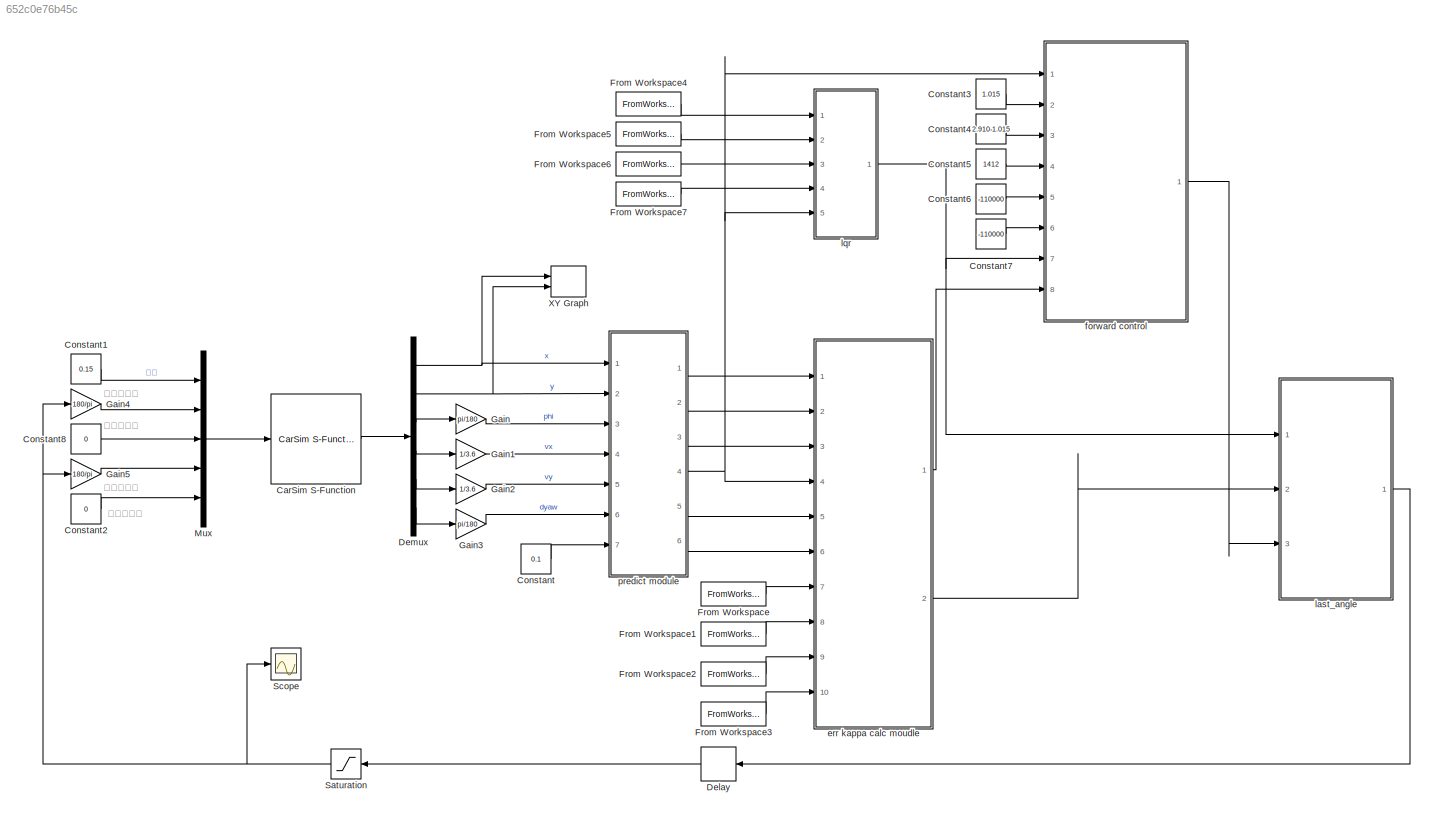
MODEL slx_652c0e76b45c
KIND model
CONFIG AbsTol = auto
CONFIG EnableMultiTasking = off
CONFIG FixedStep = auto
CONFIG MaxStep = auto
CONFIG MinStep = auto
CONFIG RelTol = 1e-3
CONFIG SampleTimeConstraint = Unconstrained
CONFIG SolverName = VariableStepAuto
CONFIG StartTime = 0.0
CONFIG StopTime = 100
BLOCK [Reference] CarSim S-Function  REF=Solver_SF/CarSim S-Function
  Ports = [1, 1]
  Priority = 1
  SourceBlock = Solver_SF/CarSim S-Function
  SourceProductName = CarSim S-Function
  SourceType = Vehicle math model library
BLOCK [Constant] Constant
  Value = 0.1
BLOCK [Constant] Constant1
  Value = 0.15
BLOCK [Constant] Constant2
  Value = 0
BLOCK [Constant] Constant3
  Value = 1.015
BLOCK [Constant] Constant4
  Value = 2.910-1.015
BLOCK [Constant] Constant5
  Value = 1412
BLOCK [Constant] Constant6
  Value = -110000
BLOCK [Constant] Constant7
  Value = -110000
BLOCK [Constant] Constant8
  Value = 0
BLOCK [Delay] Delay
  DelayLength = 1
  InputPortMap = u0
  Ports = [1, 1]
BLOCK [Demux] Demux
  Outputs = 6
  Ports = [1, 6]
BLOCK [FromWorkspace] From Workspace
  VariableName = xr
BLOCK [FromWorkspace] From Workspace1
  VariableName = yr
BLOCK [FromWorkspace] From Workspace2
  VariableName = thetar
BLOCK [FromWorkspace] From Workspace3
  VariableName = kappar
BLOCK [FromWorkspace] From Workspace4
  VariableName = k1
BLOCK [FromWorkspace] From Workspace5
  VariableName = k2
BLOCK [FromWorkspace] From Workspace6
  VariableName = k3
BLOCK [FromWorkspace] From Workspace7
  VariableName = k4
BLOCK [Gain] Gain
  Gain = pi/180
BLOCK [Gain] Gain1
  Gain = 1/3.6
BLOCK [Gain] Gain2
  Gain = 1/3.6
BLOCK [Gain] Gain3
  Gain = pi/180
BLOCK [Gain] Gain4
  Gain = 180/pi
BLOCK [Gain] Gain5
  Gain = 180/pi
BLOCK [Mux] Mux
  DisplayOption = bar
  Inputs = 5
  Ports = [5, 1]
BLOCK [Saturate] Saturation
  LowerLimit = -1
  UpperLimit = 1
BLOCK [Scope] Scope
  Floating = off
  NumInputPorts = 1
  Ports = [1]
  ScopeSpecificationString = Simulink.scopes.TimeScopeBlockCfg('CurrentConfiguration', extmgr.ConfigurationSet(extmgr.Configuration('Core','General UI',true),extmgr.Configuration('Core','Source UI',true),extmgr.Configuration('Sources','WiredSimulink',true),extmgr.Configuration('Visuals','Time Domain',true,'SerializedDisplays',{struct('MinYLimReal','-1.25','MaxYLimReal','1.25','YLabelReal','','MinYLimMag','0.00000','MaxYLimMag...<+1356ch>
BLOCK [Record] XY Graph
  CompatibilityTag = XY
  FileSettingsInternal = {"entries":[{"content":{"excelSettings":{"content":{},"type":"Streamout.ExcelSettings"}},"type":"Streamout.FileSettingStorage","uuid":"333ade27-daaf-48fc-95cc-648013fd297e"}],"packageUris":["http://schema.mathworks.com/mf0/streamout_blocks/R2020a"],"version":"1.0"}
  Layout = [1 1]
  Ports = [2]
  SignalsInternal = {"entries":[{"content":{"signals":[{"content":{"blockPath":["LaoWang_chap8_lqr/XY Graph"],"channel":[],"dimensions":[1],"domain":"LaoWang_chap8_lqr/XY Graph","lineColor":"#a2142f","plots":[1],"port":1,"sid":[""],"signalID":605,"signalName":"x"},"type":"RecordBlkView.Signal","uuid":"d6d6934b-4596-4759-a39d-c71adecb1ea4"},{"content":{"blockPath":["LaoWang_chap8_lqr/XY Graph"],"channel":[],"dimension...<+385ch>
  VisualizationBindings = {"xyplotplugin":{"info":[{"series":[{"bindingParametersList":[{"parameter":"X-Axis","signalID":605,"signalName":"x"},{"parameter":"Y-Axis","signalID":609,"signalName":"y"}],"seriesID":32386}],"subplotID":1}]}}
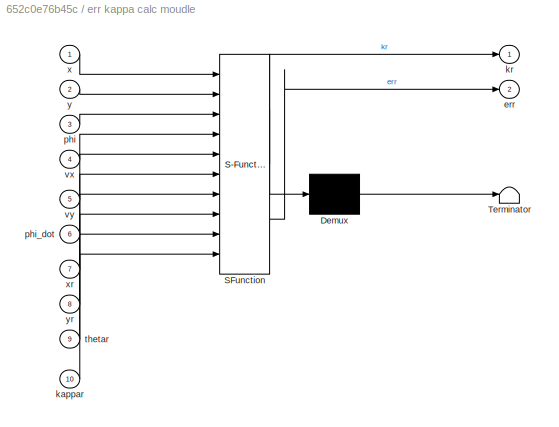
BLOCK [SubSystem] err kappa calc moudle
  ErrorFcn = Stateflow.Translate.translate
  PermitHierarchicalResolution = ExplicitOnly
  Ports = [10, 2]
  RequestExecContextInheritance = off
  SFBlockType = MATLAB Function
  TreatAsAtomicUnit = on
BLOCK [Demux] err kappa calc moudle/ Demux 
  Outputs = 1
  Ports = [1, 1]
BLOCK [S-Function] err kappa calc moudle/ SFunction 
  EnableBusSupport = on
  FunctionName = sf_sfun
  PortCounts = [10 3]
  Ports = [10, 3]
  SFcnIsStateOwnerBlock = off
  SFunctionDeploymentMode = off
  Tag = Stateflow S-Function 1
BLOCK [Terminator] err kappa calc moudle/ Terminator 
BLOCK [Outport] err kappa calc moudle/err
  Port = 2
BLOCK [Inport] err kappa calc moudle/kappar
  Port = 10
BLOCK [Outport] err kappa calc moudle/kr
BLOCK [Inport] err kappa calc moudle/phi
  Port = 3
BLOCK [Inport] err kappa calc moudle/phi_dot
  Port = 6
BLOCK [Inport] err kappa calc moudle/thetar
  Port = 9
BLOCK [Inport] err kappa calc moudle/vx
  Port = 4
BLOCK [Inport] err kappa calc moudle/vy
  Port = 5
BLOCK [Inport] err kappa calc moudle/x
BLOCK [Inport] err kappa calc moudle/xr
  Port = 7
BLOCK [Inport] err kappa calc moudle/y
  Port = 2
BLOCK [Inport] err kappa calc moudle/yr
  Port = 8
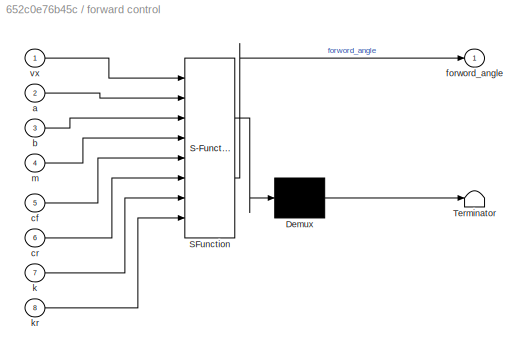
BLOCK [SubSystem] forward control
  ErrorFcn = Stateflow.Translate.translate
  PermitHierarchicalResolution = ExplicitOnly
  Ports = [8, 1]
  RequestExecContextInheritance = off
  SFBlockType = MATLAB Function
  TreatAsAtomicUnit = on
BLOCK [Demux] forward control/ Demux 
  Outputs = 1
  Ports = [1, 1]
BLOCK [S-Function] forward control/ SFunction 
  EnableBusSupport = on
  FunctionName = sf_sfun
  PortCounts = [8 2]
  Ports = [8, 2]
  SFcnIsStateOwnerBlock = off
  SFunctionDeploymentMode = off
  Tag = Stateflow S-Function 4
BLOCK [Terminator] forward control/ Terminator 
BLOCK [Inport] forward control/a
  Port = 2
BLOCK [Inport] forward control/b
  Port = 3
BLOCK [Inport] forward control/cf
  Port = 5
BLOCK [Inport] forward control/cr
  Port = 6
BLOCK [Outport] forward control/forword_angle
BLOCK [Inport] forward control/k
  Port = 7
BLOCK [Inport] forward control/kr
  Port = 8
BLOCK [Inport] forward control/m
  Port = 4
BLOCK [Inport] forward control/vx
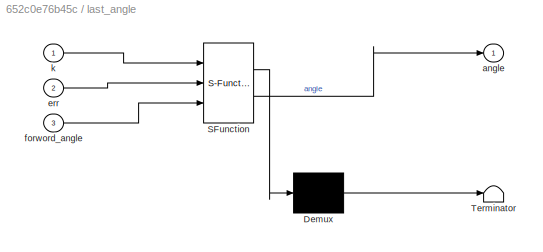
BLOCK [SubSystem] last_angle
  ErrorFcn = Stateflow.Translate.translate
  PermitHierarchicalResolution = ExplicitOnly
  Ports = [3, 1]
  RequestExecContextInheritance = off
  SFBlockType = MATLAB Function
  TreatAsAtomicUnit = on
BLOCK [Demux] last_angle/ Demux 
  Outputs = 1
  Ports = [1, 1]
BLOCK [S-Function] last_angle/ SFunction 
  EnableBusSupport = on
  FunctionName = sf_sfun
  PortCounts = [3 2]
  Ports = [3, 2]
  SFcnIsStateOwnerBlock = off
  SFunctionDeploymentMode = off
  Tag = Stateflow S-Function 5
BLOCK [Terminator] last_angle/ Terminator 
BLOCK [Outport] last_angle/angle
BLOCK [Inport] last_angle/err
  Port = 2
BLOCK [Inport] last_angle/forword_angle
  Port = 3
BLOCK [Inport] last_angle/k
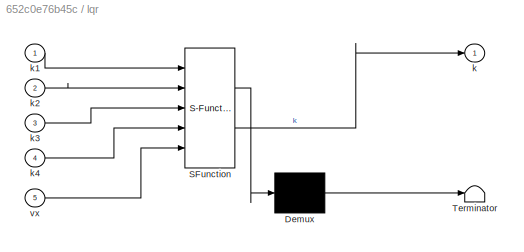
BLOCK [SubSystem] lqr
  ErrorFcn = Stateflow.Translate.translate
  PermitHierarchicalResolution = ExplicitOnly
  Ports = [5, 1]
  RequestExecContextInheritance = off
  SFBlockType = MATLAB Function
  TreatAsAtomicUnit = on
BLOCK [Demux] lqr/ Demux 
  Outputs = 1
  Ports = [1, 1]
BLOCK [S-Function] lqr/ SFunction 
  EnableBusSupport = on
  FunctionName = sf_sfun
  PortCounts = [5 2]
  Ports = [5, 2]
  SFcnIsStateOwnerBlock = off
  SFunctionDeploymentMode = off
  Tag = Stateflow S-Function 3
BLOCK [Terminator] lqr/ Terminator 
BLOCK [Outport] lqr/k
BLOCK [Inport] lqr/k1
BLOCK [Inport] lqr/k2
  Port = 2
BLOCK [Inport] lqr/k3
  Port = 3
BLOCK [Inport] lqr/k4
  Port = 4
BLOCK [Inport] lqr/vx
  Port = 5
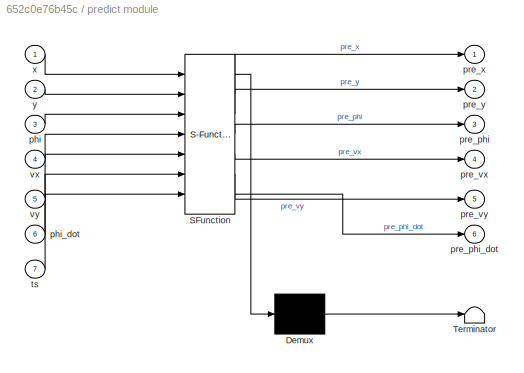
BLOCK [SubSystem] predict module
  ErrorFcn = Stateflow.Translate.translate
  PermitHierarchicalResolution = ExplicitOnly
  Ports = [7, 6]
  RequestExecContextInheritance = off
  SFBlockType = MATLAB Function
  TreatAsAtomicUnit = on
BLOCK [Demux] predict module/ Demux 
  Outputs = 1
  Ports = [1, 1]
BLOCK [S-Function] predict module/ SFunction 
  EnableBusSupport = on
  FunctionName = sf_sfun
  PortCounts = [7 7]
  Ports = [7, 7]
  SFcnIsStateOwnerBlock = off
  SFunctionDeploymentMode = off
  Tag = Stateflow S-Function 2
BLOCK [Terminator] predict module/ Terminator 
BLOCK [Inport] predict module/phi
  Port = 3
BLOCK [Inport] predict module/phi_dot
  Port = 6
BLOCK [Outport] predict module/pre_phi
  Port = 3
BLOCK [Outport] predict module/pre_phi_dot
  Port = 6
BLOCK [Outport] predict module/pre_vx
  Port = 4
BLOCK [Outport] predict module/pre_vy
  Port = 5
BLOCK [Outport] predict module/pre_x
BLOCK [Outport] predict module/pre_y
  Port = 2
BLOCK [Inport] predict module/ts
  Port = 7
BLOCK [Inport] predict module/vx
  Port = 4
BLOCK [Inport] predict module/vy
  Port = 5
BLOCK [Inport] predict module/x
BLOCK [Inport] predict module/y
  Port = 2
ANNOTATION (root): 右前轮转角
ANNOTATION (root): 右后轮转角
ANNOTATION (root): 左前轮转角
ANNOTATION (root): 左后轮转角
LINE CarSim S-Function:1 -> Demux:1
LINE Constant1:1 -> Mux:1
LINE Constant2:1 -> Mux:5
LINE Constant3:1 -> forward control:2
LINE Constant4:1 -> forward control:3
LINE Constant5:1 -> forward control:4
LINE Constant6:1 -> forward control:5
LINE Constant7:1 -> forward control:6
LINE Constant8:1 -> Mux:3
LINE Constant:1 -> predict module:7
LINE Delay:1 -> Saturation:1
NET Demux:1 -> XY Graph:1, predict module:1
NET Demux:2 -> XY Graph:2, predict module:2
LINE Demux:3 -> Gain:1
LINE Demux:4 -> Gain1:1
LINE Demux:5 -> Gain2:1
LINE Demux:6 -> Gain3:1
LINE From Workspace1:1 -> err kappa calc moudle:8
LINE From Workspace2:1 -> err kappa calc moudle:9
LINE From Workspace3:1 -> err kappa calc moudle:10
LINE From Workspace4:1 -> lqr:1
LINE From Workspace5:1 -> lqr:2
LINE From Workspace6:1 -> lqr:3
LINE From Workspace7:1 -> lqr:4
LINE From Workspace:1 -> err kappa calc moudle:7
LINE Gain1:1 -> predict module:4
LINE Gain2:1 -> predict module:5
LINE Gain3:1 -> predict module:6
LINE Gain4:1 -> Mux:2
LINE Gain5:1 -> Mux:4
LINE Gain:1 -> predict module:3
LINE Mux:1 -> CarSim S-Function:1
NET Saturation:1 -> Gain4:1, Gain5:1, Scope:1
LINE err kappa calc moudle:1 -> forward control:8
LINE err kappa calc moudle:2 -> last_angle:2
LINE forward control:1 -> last_angle:3
LINE last_angle:1 -> Delay:1
NET lqr:1 -> forward control:7, last_angle:1
LINE predict module:1 -> err kappa calc moudle:1
LINE predict module:2 -> err kappa calc moudle:2
LINE predict module:3 -> err kappa calc moudle:3
NET predict module:4 -> err kappa calc moudle:4, forward control:1, lqr:5
LINE predict module:5 -> err kappa calc moudle:5
LINE predict module:6 -> err kappa calc moudle:6
note: NET lines group one-source signal fan-out (src -> all destinations, sorted); 1:1 wires keep LINE
CHART err kappa calc moudle states=1 transitions=1
  STATE_LABEL 'eML_blk_kernel()'
  STATE_LABEL 'SCRIPT:\nfunction [kr,err] = fcn(x,y,phi,vx,vy,phi_dot,xr,yr,thetar,kappar)\n    n=length(xr);%先找到规划轨迹的长度，共有多少个规划点\n    d_min=(x-xr(1))^2+(y-yr(1))^2;%把最短距离设为真实位置与第1个点。可以不用开平方根，减少计算量，因为并不关心距离是多少，只想找到最短点的序号\n    min=1;%先把最短点的序号设为1\n    for i=1:n%遍历所有的点\n        d=(x-xr(i))^2+(y-yr(i))^2;%计算它与真实的位置的之间的距离\n        if d<d_min%如果能找到比所设置的最短距离还要短\n            d_min=d;%将值赋为最短距离\n            min=i;%把序点的序号赋给min\n    ...<+768ch>'
CHART predict module states=1 transitions=1
  STATE_LABEL 'eML_blk_kernel()'
  STATE_LABEL 'SCRIPT:\nfunction [ pre_x,pre_y,pre_phi,pre_vx,pre_vy,pre_phi_dot] = fcn(x,y,phi,vx,vy,phi_dot,ts)\n    pre_x = x + vx*ts*cos(phi) - vy*ts*sin(phi);\n    pre_y = y + vy*ts*cos(phi) + vx*ts*sin(phi);\n    pre_phi = phi + phi_dot*ts;\n    pre_vx = vx;\n    pre_vy = vy;\n    pre_phi_dot = phi_dot;\nend\n'
CHART lqr states=1 transitions=1
  STATE_LABEL 'eML_blk_kernel()'
  STATE_LABEL 'SCRIPT:\nfunction k  = fcn(k1,k2,k3,k4,vx)\n    if abs(vx)<0.01%特殊处理如果 v 的绝对值小于0.01，\n        k=[0,0,0,0];%直接令 k 就等于0，它是航向量\n    else\n        index=round(vx/0.01);%否则的话就用 v x 除001，再用round四舍五入，值就是所要的匹配的序号\n        k=[k1(index),k2(index),k3(index),k4(index)];\n    end\nend\n'
CHART forward control states=1 transitions=1
  STATE_LABEL 'eML_blk_kernel()'
  STATE_LABEL 'SCRIPT:\nfunction forword_angle = fcn(vx,a,b,m,cf,cr,k,kr)\n    forword_angle=kr*(a+b-b*k(3)-(m*vx*vx/(a+b))*((b/cf)+(a/cr)*k(3)-(a/cr)));\nend\n'
CHART last_angle states=1 transitions=1
  STATE_LABEL 'eML_blk_kernel()'
  STATE_LABEL 'SCRIPT:\nfunction angle = fcn(k,err,forword_angle)\n    angle=-k*err+forword_angle;\nend\n'
CHART  states=0 transitions=0
CHART  states=0 transitions=0
CHART  states=0 transitions=0
CHART  states=0 transitions=0
CHART  states=0 transitions=0
